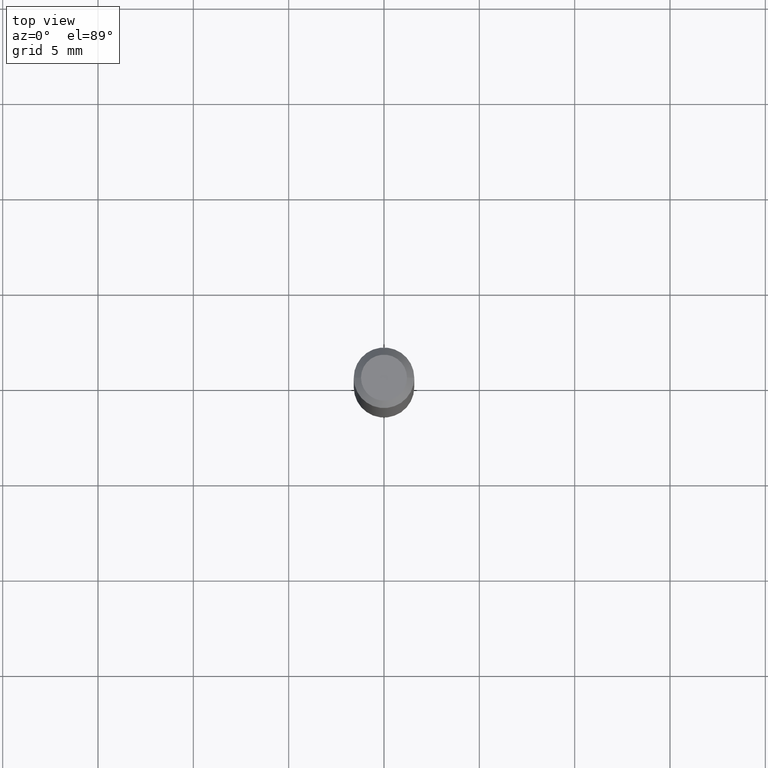
[diagram: clean part render]
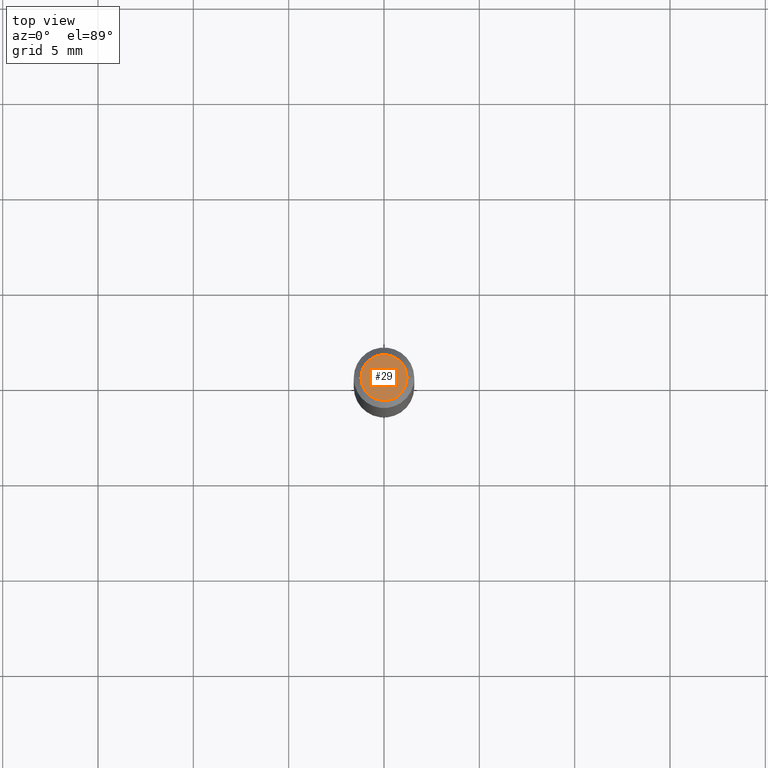
[diagram: same view with one face highlighted and labeled with its STEP entity id]
A machine part, top view. The second image highlights one B-rep face of the part: STEP entity #29.
In plain terms, the highlighted planar face has unit normal (0, -0, -1).
Its self-contained STEP definition (entity closure, byte-faithful):
#29 = ADVANCED_FACE ( 'NONE', ( #380 ), #384, .F. ) ;
#43 = CIRCLE ( 'NONE', #300, 0.04749999999999999362 ) ;
#50 = EDGE_LOOP ( 'NONE', ( #325, #419 ) ) ;
#115 = AXIS2_PLACEMENT_3D ( 'NONE', #118, #238, #155 ) ;
#118 = CARTESIAN_POINT ( 'NONE',  ( 3.316907271900976096E-16, 0.04749999999999999362, -2.653275547260257586E-16 ) ) ;
#129 = DIRECTION ( 'NONE',  ( 1.000000000000000000, -6.982962677686267499E-15, 4.852736867747366768E-29 ) ) ;
#145 = AXIS2_PLACEMENT_3D ( 'NONE', #463, #275, #210 ) ;
#152 = VERTEX_POINT ( 'NONE', #178 ) ;
#155 = DIRECTION ( 'NONE',  ( -1.000000000000000000, 6.982962677686265922E-15, -4.876176775795935793E-29 ) ) ;
#162 = CARTESIAN_POINT ( 'NONE',  ( 0.04749999999999999362, -4.035134999187581581E-16, -1.989643822619502098E-16 ) ) ;
#165 = EDGE_CURVE ( 'NONE', #152, #298, #381, .T. ) ;
#178 = CARTESIAN_POINT ( 'NONE',  ( -0.04749999999999999362, 3.578768372314206562E-16, -1.989643822619551895E-16 ) ) ;
#209 = CARTESIAN_POINT ( 'NONE',  ( 4.865611903635008365E-45, -6.946804277620623666E-31, -1.989643822619527736E-16 ) ) ;
#210 = DIRECTION ( 'NONE',  ( 1.000000000000000000, -6.982962677686267499E-15, 4.852736867747366768E-29 ) ) ;
#238 = DIRECTION ( 'NONE',  ( 2.438088387897960049E-29, -3.491481338843145188E-15, -1.000000000000000000 ) ) ;
#275 = DIRECTION ( 'NONE',  ( -2.445468806185136597E-29, 3.491481338843145583E-15, 1.000000000000000000 ) ) ;
#298 = VERTEX_POINT ( 'NONE', #162 ) ;
#300 = AXIS2_PLACEMENT_3D ( 'NONE', #209, #357, #129 ) ;
#325 = ORIENTED_EDGE ( 'NONE', *, *, #165, .T. ) ;
#334 = EDGE_CURVE ( 'NONE', #298, #152, #43, .T. ) ;
#357 = DIRECTION ( 'NONE',  ( -2.445468806185136597E-29, 3.491481338843145583E-15, 1.000000000000000000 ) ) ;
#380 = FACE_OUTER_BOUND ( 'NONE', #50, .T. ) ;
#381 = CIRCLE ( 'NONE', #145, 0.04749999999999999362 ) ;
#384 = PLANE ( 'NONE',  #115 ) ;
#419 = ORIENTED_EDGE ( 'NONE', *, *, #334, .T. ) ;
#463 = CARTESIAN_POINT ( 'NONE',  ( 4.865611903635008365E-45, -6.946804277620623666E-31, -1.989643822619527736E-16 ) ) ;